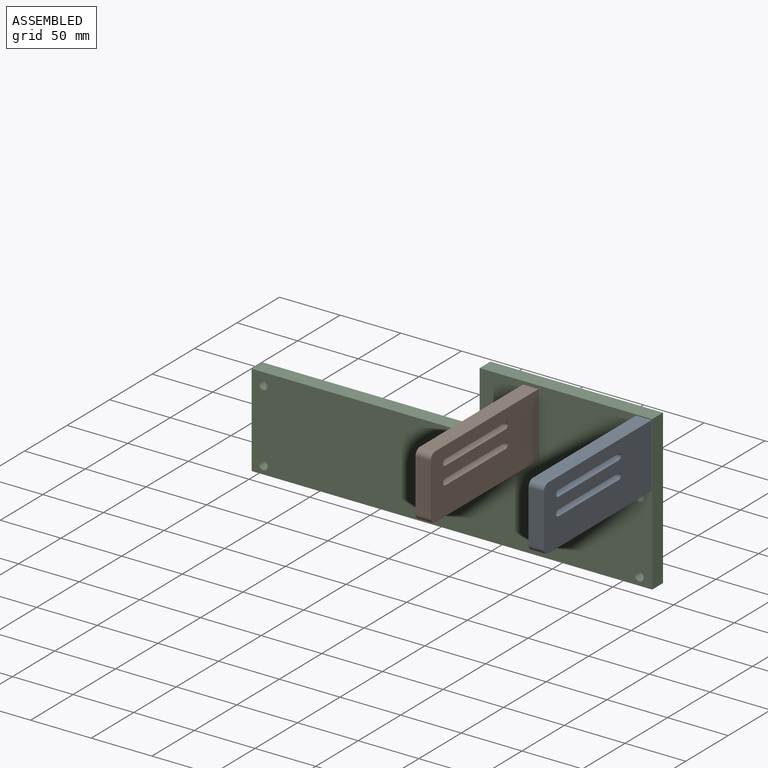
[diagram: assembled view]
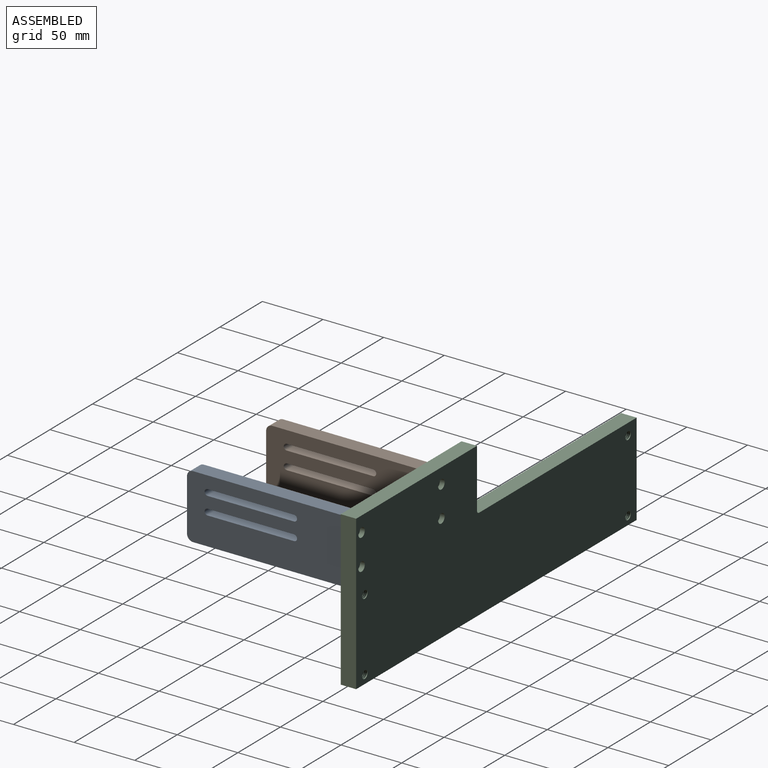
[diagram: assembled view, second angle]
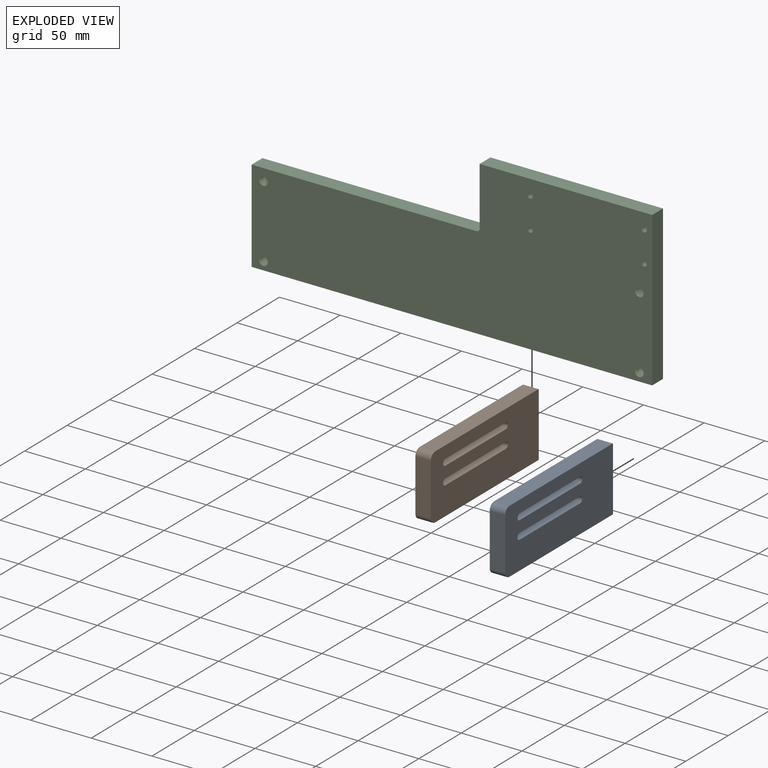
[diagram: exploded view]
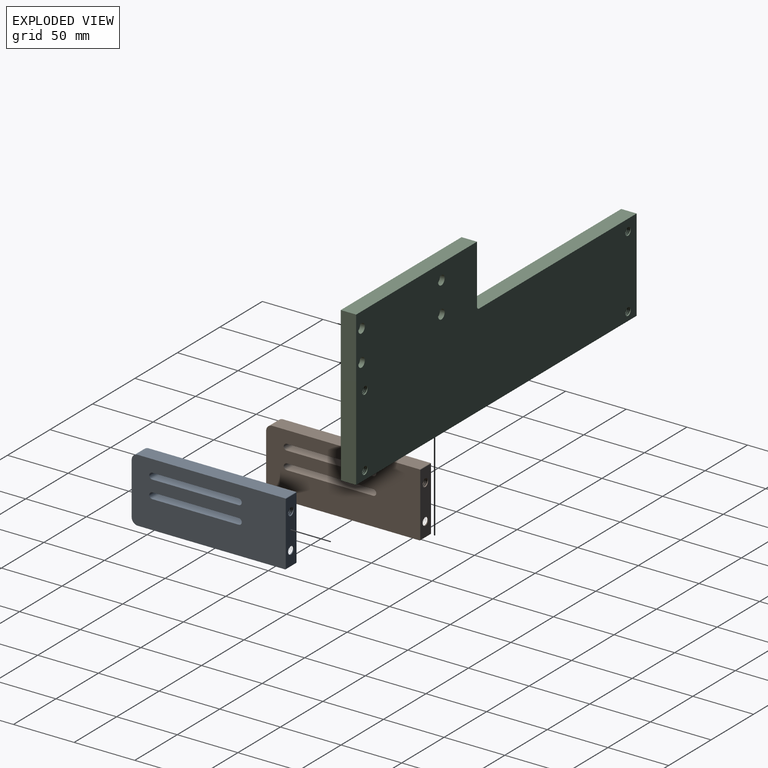
[diagram: exploded view, second angle]
ASSEMBLY  parts=3 mates=2
PART A: 38 faces, bbox 127x12.7x52.9 mm
  f0: cylinder r=3.17mm len=7mm, axis (1,0,0), area 35.1mm2, adj f1,f4,f5,f6,f37
  f1: plane 6.35x6.35mm, normal (1,0,0), area 31.7mm2, adj f0,f2
  f2: cylinder r=3.17mm len=6.35mm, axis (1,0,0), area 8.1mm2, adj f1,f3,f4
  f3: plane 1.02x0.88mm, normal (0,0,1), area 0.4mm2, adj f2,f4,f37
  f4: bspline ~9.34x8.36mm, area 127mm2, adj f0,f2,f3,f5,f37
  f5: plane 1.02x0.88mm, normal (0,-0.07,1), area 0.4mm2, adj f0,f4,f37
  f6: plane 51.99x12.7mm, normal (1,0,0), area 597mm2, adj f0,f7,f13,f22,f23,f24
  f7: cylinder r=0.44mm len=12.7mm, axis (0,1,0), area 8.9mm2, adj f6,f8,f13,f23
  f8: plane 121.48x12.7mm, normal (0,0,1), area 1542.7mm2, adj f7,f9,f13,f23
  f9: cylinder r=5.08mm len=12.7mm, axis (0,-1,0), area 101.3mm2, adj f8,f10,f13,f23
  f10: plane 42.72x12.7mm, normal (-1,0,0), area 542.6mm2, adj f9,f11,f13,f23
  f11: cylinder r=5.08mm len=12.7mm, axis (0,1,0), area 101.3mm2, adj f10,f12,f13,f23
  f12: plane 121.48x12.7mm, normal (0,0,-1), area 1542.7mm2, adj f11,f13,f22,f23
  f13: plane 127x52.88mm, normal (0,1,0), area 5941.8mm2, adj f6,f7,f8,f9,f10,f11,f12,f14
  f14: plane 71.12x12.7mm, normal (0,0,1), area 903.2mm2, adj f13,f15,f17,f23
  f15: cylinder r=2.54mm len=12.7mm, axis (0,1,0), area 101.3mm2, adj f13,f14,f16,f23
  f16: plane 71.12x12.7mm, normal (0,0,-1), area 903.2mm2, adj f13,f15,f17,f23
  f17: cylinder r=2.54mm len=12.7mm, axis (0,1,0), area 101.3mm2, adj f13,f14,f16,f23
  f18: plane 71.12x12.7mm, normal (0,0,1), area 903.2mm2, adj f13,f19,f21,f23
  f19: cylinder r=2.54mm len=12.7mm, axis (0,1,0), area 101.3mm2, adj f13,f18,f20,f23
  f20: plane 71.12x12.7mm, normal (0,0,-1), area 903.2mm2, adj f13,f19,f21,f23
  f21: cylinder r=2.54mm len=12.7mm, axis (0,1,0), area 101.3mm2, adj f13,f18,f20,f23
  f22: cylinder r=0.44mm len=12.7mm, axis (0,-1,0), area 8.9mm2, adj f6,f12,f13,f23
  f23: plane 127x52.88mm, normal (0,-1,0), area 5941.8mm2, adj f6,f7,f8,f9,f10,f11,f12,f14
  f24: cylinder r=3.17mm len=6.35mm, axis (1,0,0), area 13.1mm2, adj f6,f25,f34,f35,f36
  f25: bspline ~8.09x8.04mm, area 125.9mm2, adj f24,f26,f27,f28,f29,f30,f31,f32
  f26: cylinder r=3.17mm len=6.35mm, axis (1,0,0), area 3.2mm2, adj f25,f27,f30,f33
  f27: cylinder r=3.17mm len=6.35mm, axis (1,0,0), area 5.3mm2, adj f25,f26,f28,f30
  f28: cylinder r=3.17mm len=6.35mm, axis (1,0,0), area 5.3mm2, adj f25,f27,f29,f30
  f29: cylinder r=3.17mm len=6.35mm, axis (1,0,0), area 5.3mm2, adj f25,f28,f30,f34
  f30: bspline ~9.32x8.42mm, area 126.1mm2, adj f25,f26,f27,f28,f29,f31,f32,f33
  f31: plane 1.02x0.88mm, normal (0,0.07,1), area 0.4mm2, adj f25,f30,f32
  f32: cylinder r=3.17mm len=6.33mm, axis (1,0,0), area 8.3mm2, adj f25,f30,f31,f33
  f33: plane 6.34x6.33mm, normal (1,0,0), area 31.5mm2, adj f25,f26,f30,f32
  f34: cylinder r=3.17mm len=6.35mm, axis (1,0,0), area 5.3mm2, adj f24,f25,f29,f30
  f35: plane 1.01x0.87mm, normal (0,0,1), area 0.4mm2, adj f24,f25,f30,f36
  f36: cylinder r=3.17mm len=0mm, axis (1,0,0), area 0mm2, adj f24,f25,f35
  f37: bspline ~8.11x8.04mm, area 127.2mm2, adj f0,f3,f4,f5
PART B: same geometry as A
PART C: 47 faces, bbox 330.8x14x127.6 mm
  f0: plane 76.2x12.7mm, normal (-1,0,0), area 967.7mm2, adj f1,f9,f15,f16
  f1: plane 330.2x12.7mm, normal (0,0,-1), area 4193.5mm2, adj f0,f2,f15,f16
  f2: plane 127x12.7mm, normal (1,0,0), area 1612.9mm2, adj f1,f3,f15,f16
  f3: plane 142.24x12.7mm, normal (0,0,1), area 1806.4mm2, adj f2,f4,f15,f16
  f4: plane 48.26x12.7mm, normal (-1,0,0), area 612.9mm2, adj f3,f5,f15,f16
  f5: cylinder r=2.54mm len=12.7mm, axis (0,1,0), area 50.7mm2, adj f4,f9,f15,f16
  f6: cylinder r=1.73mm len=8.51mm, axis (0,1,0), area 20.3mm2, adj f24,f25,f26,f29
  f7: cylinder r=1.73mm len=8.76mm, axis (0,1,0), area 40.2mm2, adj f15,f20,f33,f34
  f8: cylinder r=1.73mm len=8.51mm, axis (0,1,0), area 20.3mm2, adj f18,f27,f28,f30
  f9: plane 185.42x12.7mm, normal (0,0,1), area 2354.8mm2, adj f0,f5,f15,f16
  f10: cylinder r=3.17mm len=12.7mm, axis (0,1,0), area 48.4mm2, adj f15,f16,f35,f36,f37
  f11: cylinder r=3.17mm len=12.7mm, axis (0,1,0), area 48.4mm2, adj f15,f16,f41,f42,f43
  f12: cylinder r=3.17mm len=12.7mm, axis (0,1,0), area 48.4mm2, adj f15,f16,f44,f45,f46
  f13: cylinder r=3.17mm len=12.7mm, axis (0,1,0), area 48.4mm2, adj f15,f16,f38,f39,f40
  f14: cylinder r=1.73mm len=8.76mm, axis (0,1,0), area 40.2mm2, adj f15,f22,f31,f32
  f15: plane 330.79x127.59mm, normal (0,-1,0), area 32182.9mm2, adj f0,f1,f2,f3,f4,f5,f7,f9
  f16: plane 330.2x127mm, normal (0,1,0), area 32079.3mm2, adj f0,f1,f2,f3,f4,f5,f9,f10
  f17: cylinder r=3.81mm len=7.62mm, axis (0,1,0), area 94.2mm2, adj f16,f18
  f18: plane 7.98x7.98mm, normal (0,1,0), area 33.6mm2, adj f8,f17,f27,f28
  f19: cylinder r=3.81mm len=7.62mm, axis (0,1,0), area 94.2mm2, adj f16,f20
  f20: plane 7.86x7.86mm, normal (0,1,0), area 34.6mm2, adj f7,f19,f33,f34
  f21: cylinder r=3.81mm len=7.62mm, axis (0,1,0), area 94.2mm2, adj f16,f22
  f22: plane 7.86x7.86mm, normal (0,1,0), area 34.6mm2, adj f14,f21,f31,f32
  f23: cylinder r=3.81mm len=7.62mm, axis (0,1,0), area 94.2mm2, adj f16,f24
  f24: plane 7.98x7.98mm, normal (0,1,0), area 33.6mm2, adj f6,f23,f25,f26
  f25: bspline ~9.31x5.26mm, area 88mm2, adj f6,f15,f24,f26,f29
  f26: bspline ~9.58x5.26mm, area 88mm2, adj f6,f15,f24,f25,f29
  f27: bspline ~9.31x5.26mm, area 88mm2, adj f8,f15,f18,f28,f30
  f28: bspline ~9.58x5.26mm, area 88mm2, adj f8,f15,f18,f27,f30
  f29: cone r=1.73mm half-angle=45deg, axis (0,-1,0), area 1.6mm2, adj f6,f15,f25,f26
  f30: cone r=1.73mm half-angle=45deg, axis (0,-1,0), area 1.6mm2, adj f8,f15,f27,f28
  f31: bspline ~9.38x5mm, area 68.7mm2, adj f14,f15,f22,f32
  f32: bspline ~9.51x5mm, area 68.7mm2, adj f14,f15,f22,f31
  f33: bspline ~9.38x5mm, area 68.7mm2, adj f7,f15,f20,f34
  f34: bspline ~9.51x5mm, area 68.7mm2, adj f7,f15,f20,f33
  f35: plane 1.02x0.88mm, normal (0,0,1), area 0.4mm2, adj f10,f36,f37
  f36: bspline ~13.42x9.36mm, area 226.3mm2, adj f10,f15,f35,f37
  f37: bspline ~12.78x9.36mm, area 218.1mm2, adj f10,f15,f35,f36
  f38: plane 1.02x0.88mm, normal (0,0,1), area 0.4mm2, adj f13,f39,f40
  f39: bspline ~13.42x9.36mm, area 226.3mm2, adj f13,f15,f38,f40
  f40: bspline ~12.78x9.36mm, area 218.1mm2, adj f13,f15,f38,f39
  f41: plane 1.02x0.88mm, normal (0,0,1), area 0.4mm2, adj f11,f42,f43
  f42: bspline ~13.42x9.36mm, area 226.3mm2, adj f11,f15,f41,f43
  f43: bspline ~12.78x9.36mm, area 218.1mm2, adj f11,f15,f41,f42
  f44: plane 1.02x0.88mm, normal (0,0,1), area 0.4mm2, adj f12,f45,f46
  f45: bspline ~13.42x9.36mm, area 226.3mm2, adj f12,f15,f44,f46
  f46: bspline ~12.78x9.36mm, area 218.1mm2, adj f12,f15,f44,f45
PLACE A rot(axis=(0,0,1),90deg) t=(168.15,-50.57,35.32)mm
PLACE B rot(axis=(0,0,1),90deg) t=(74.95,-50.57,33.5)mm
PLACE C t=(35.1,14.33,0.76)mm
MATE fastened A.f24 <-> C.f8  axis (0,1,0) through (174.85,1.63,48.39)mm
MATE fastened B.f24 <-> C.f15  axis (0,1,0) through (81.65,1.63,46.57)mm
